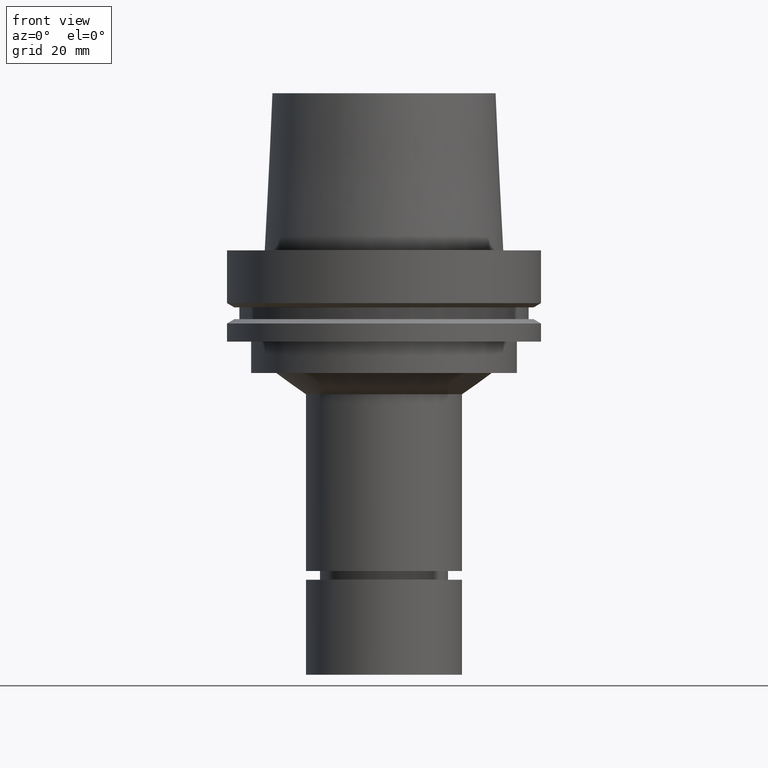
[diagram: clean part render]
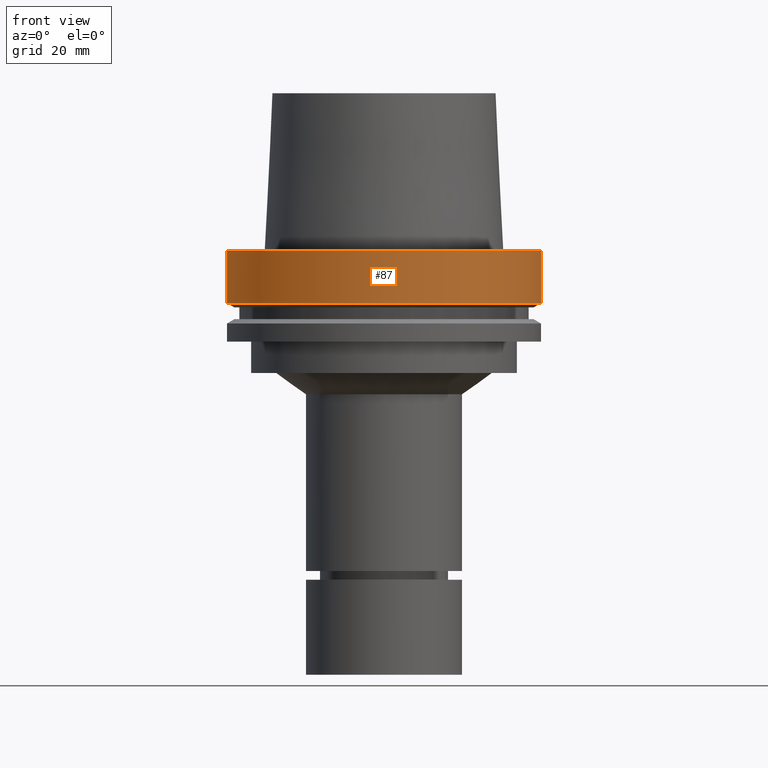
[diagram: same view with one face highlighted and labeled with its STEP entity id]
A machine part, front view. The second image highlights one B-rep face of the part: STEP entity #87.
In plain terms, the highlighted cylindrical surface (bore or boss wall) has radius 50 mm, axis along (0, 0, -1).
Its self-contained STEP definition (entity closure, byte-faithful):
#87=ADVANCED_FACE('Unnamed[1]',(#230,#231),#232,.T.);
#97=EDGE_CURVE('Unnamed[1]',#246,#246,#247,.T.);
#131=EDGE_CURVE('Unnamed[1]',#298,#298,#299,.T.);
#230=FACE_BOUND('',#432,.T.);
#231=FACE_BOUND('',#433,.T.);
#232=CYLINDRICAL_SURFACE('',#434,50.0);
#246=VERTEX_POINT('',#452);
#247=CIRCLE('',#453,50.0);
#298=VERTEX_POINT('',#517);
#299=CIRCLE('',#518,50.0);
#432=EDGE_LOOP('',(#664));
#433=EDGE_LOOP('',(#665));
#434=AXIS2_PLACEMENT_3D('',#666,#667,#668);
#452=CARTESIAN_POINT('',(1.0257889421431E-015,50.0,-16.75240474));
#453=AXIS2_PLACEMENT_3D('',#683,#684,#685);
#517=CARTESIAN_POINT('',(-1.81547968506605E-031,50.0,-9.76766004263236E-016));
#518=AXIS2_PLACEMENT_3D('',#738,#739,#740);
#664=ORIENTED_EDGE('',*,*,#97,.F.);
#665=ORIENTED_EDGE('',*,*,#131,.T.);
#666=CARTESIAN_POINT('',(5.12894471071548E-016,1.0257889421431E-015,-8.37620236999999));
#667=DIRECTION('',(6.12323399573677E-017,1.22464679914672E-016,-1.0));
#668=DIRECTION('',(-1.23259516440783E-032,1.0,1.22464679914672E-016));
#683=CARTESIAN_POINT('',(1.0257889421431E-015,2.05157788428619E-015,-16.75240474));
#684=DIRECTION('',(6.12323399573677E-017,1.22464679914672E-016,-1.0));
#685=DIRECTION('',(-1.23259516440783E-032,1.0,1.22464679914672E-016));
#738=CARTESIAN_POINT('',(0.0,0.0,0.0));
#739=DIRECTION('',(6.12323399573677E-017,1.22464679914672E-016,-1.0));
#740=DIRECTION('',(-1.23259516440783E-032,1.0,1.22464679914672E-016));